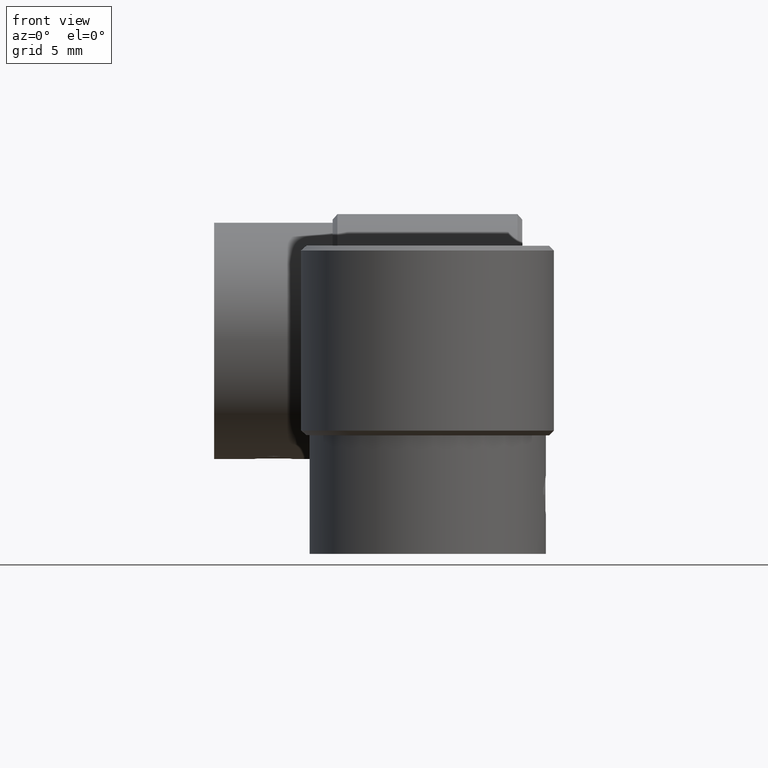
[diagram: clean part render]
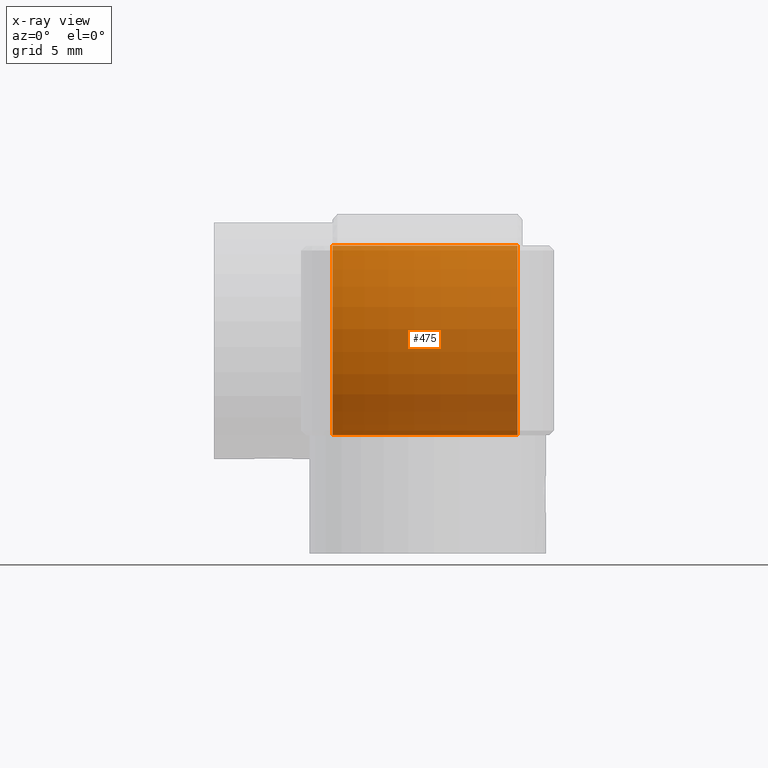
[diagram: x-ray — body ghosted, one internal face saturated and labeled with its STEP entity id]
A machine part, front view, then the same camera in x-ray: the body is ghosted and one INTERNAL B-rep face — a face not visible from any outside direction — is saturated and labeled: STEP entity #475.
In plain terms, the highlighted cylindrical surface (bore or boss wall) has radius 6 mm, axis along (1, -0, 0).
Its self-contained STEP definition (entity closure, byte-faithful):
#475 = ADVANCED_FACE( '', ( #618, #619 ), #620, .T. );
#618 = FACE_OUTER_BOUND( '', #862, .T. );
#619 = FACE_OUTER_BOUND( '', #863, .T. );
#620 = CYLINDRICAL_SURFACE( '', #864, 6.00000000000000 );
#862 = EDGE_LOOP( '', ( #1146 ) );
#863 = EDGE_LOOP( '', ( #1147 ) );
#864 = AXIS2_PLACEMENT_3D( '', #1148, #1149, #1150 );
#1146 = ORIENTED_EDGE( '', *, *, #1588, .T. );
#1147 = ORIENTED_EDGE( '', *, *, #1595, .T. );
#1148 = CARTESIAN_POINT( '', ( 18.0000000000000, 19.0000000000000, -6.00000000000000 ) );
#1149 = DIRECTION( '', ( 1.00000000000000, -0.000000000000000, 6.12323399573677E-017 ) );
#1150 = DIRECTION( '', ( -6.12323399573677E-017, 0.000000000000000, 1.00000000000000 ) );
#1588 = EDGE_CURVE( '', #1742, #1742, #1743, .F. );
#1595 = EDGE_CURVE( '', #1756, #1756, #1757, .T. );
#1742 = VERTEX_POINT( '', #2216 );
#1743 = CIRCLE( '', #2217, 6.00000000000000 );
#1756 = VERTEX_POINT( '', #2308 );
#1757 = CIRCLE( '', #2309, 6.00000000000000 );
#2216 = CARTESIAN_POINT( '', ( 5.70000000000000, 19.0000000000000, -12.0000000000000 ) );
#2217 = AXIS2_PLACEMENT_3D( '', #2606, #2607, #2608 );
#2308 = CARTESIAN_POINT( '', ( -6.00000000000000, 19.0000000000000, -12.0000000000000 ) );
#2309 = AXIS2_PLACEMENT_3D( '', #2621, #2622, #2623 );
#2606 = CARTESIAN_POINT( '', ( 5.70000000000000, 19.0000000000000, -6.00000000000000 ) );
#2607 = DIRECTION( '', ( 1.00000000000000, 0.000000000000000, 6.12323399573677E-017 ) );
#2608 = DIRECTION( '', ( 6.12323399573677E-017, 0.000000000000000, -1.00000000000000 ) );
#2621 = CARTESIAN_POINT( '', ( -6.00000000000000, 19.0000000000000, -6.00000000000000 ) );
#2622 = DIRECTION( '', ( 1.00000000000000, 0.000000000000000, 6.12323399573677E-017 ) );
#2623 = DIRECTION( '', ( 6.12323399573677E-017, 0.000000000000000, -1.00000000000000 ) );